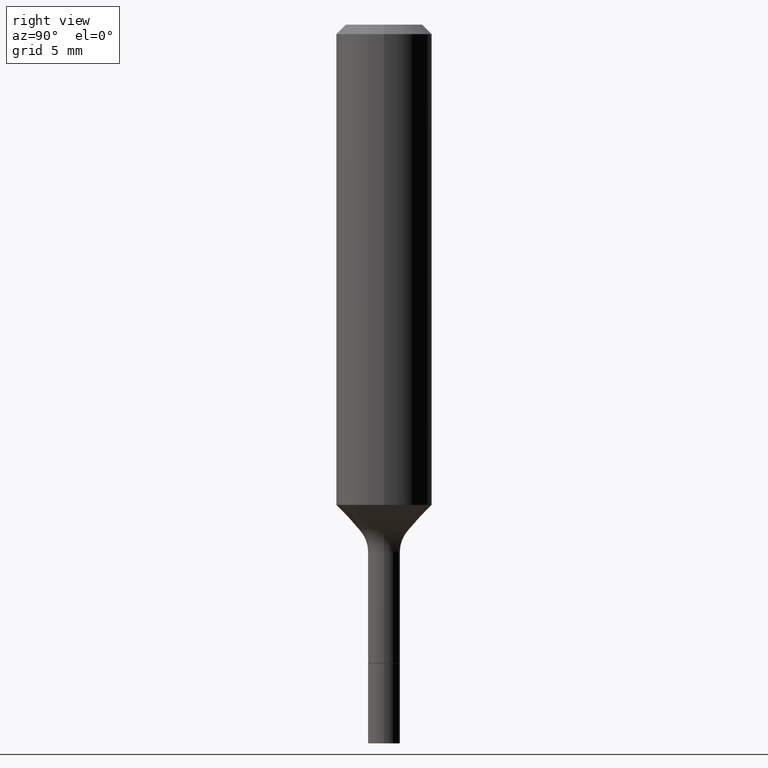
[diagram: clean part render]
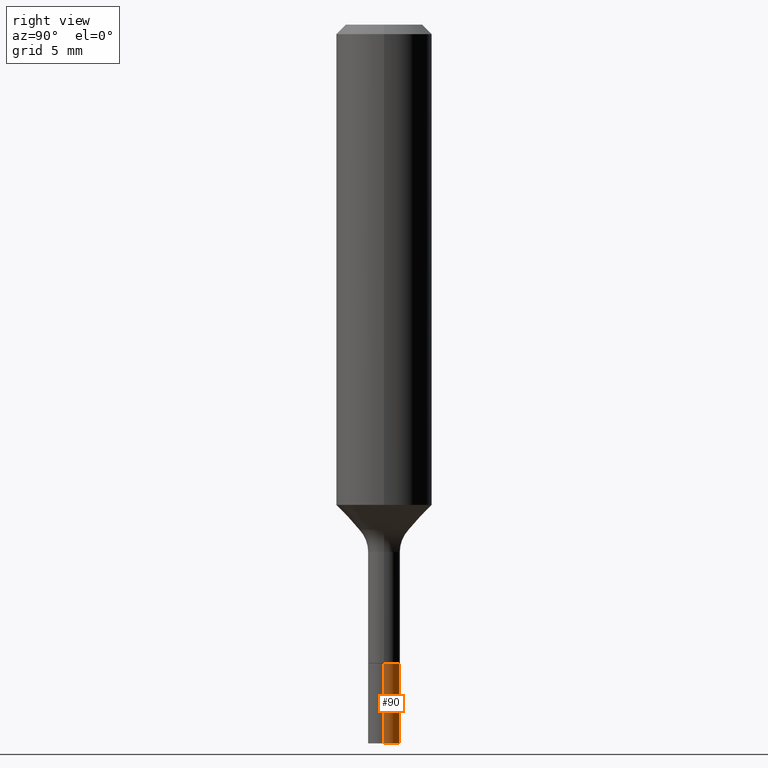
[diagram: same view with one face highlighted and labeled with its STEP entity id]
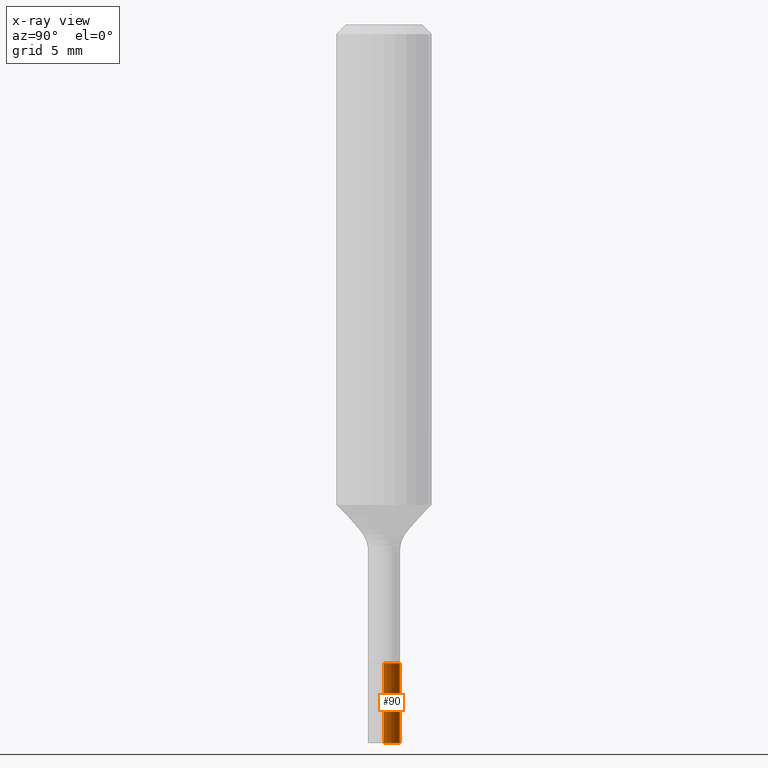
[diagram: x-ray of the same camera — body ghosted, the highlighted face saturated]
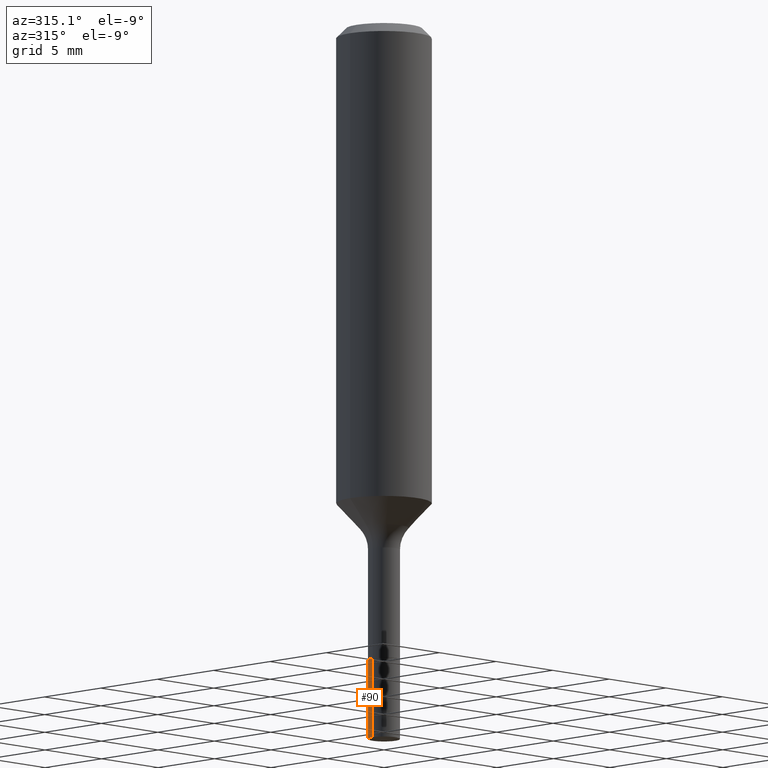
[diagram: same view with one face highlighted and labeled with its STEP entity id]
A machine part, right view. The second image highlights one B-rep face of the part: STEP entity #90.
The next image is the same camera in x-ray: the body ghosted, the highlighted face saturated — about 0% of this face is hidden behind the body in this view.
A second angle (auxiliary view) of the same face is appended — the face is thin or edge-on in the first view.
In plain terms, the highlighted cylindrical surface (edge-blend (fillet) strip) has radius 0.9995 mm, axis along (-0, 0, 1).
Its self-contained STEP definition (entity closure, byte-faithful):
#2 = CYLINDRICAL_SURFACE ( 'NONE', #320, 0.03935000000000005160 ) ;
#7 = ORIENTED_EDGE ( 'NONE', *, *, #205, .F. ) ;
#47 = EDGE_CURVE ( 'NONE', #410, #243, #139, .T. ) ;
#56 = DIRECTION ( 'NONE',  ( -2.445468806185136877E-29, 3.491481338843145188E-15, 1.000000000000000000 ) ) ;
#90 = ADVANCED_FACE ( 'NONE', ( #245 ), #2, .T. ) ;
#93 = VECTOR ( 'NONE', #56, 39.37007874015748143 ) ;
#97 = LINE ( 'NONE', #466, #152 ) ;
#107 = AXIS2_PLACEMENT_3D ( 'NONE', #516, #363, #367 ) ;
#113 = DIRECTION ( 'NONE',  ( 1.000000000000000000, -6.982962677686276177E-15, 0.000000000000000000 ) ) ;
#139 = LINE ( 'NONE', #261, #93 ) ;
#152 = VECTOR ( 'NONE', #383, 39.37007874015748143 ) ;
#157 = DIRECTION ( 'NONE',  ( -2.445468806185136597E-29, 3.491481338843145583E-15, 1.000000000000000000 ) ) ;
#162 = CARTESIAN_POINT ( 'NONE',  ( 0.03935000000000010711, -6.460637069395356787E-15, -1.771700000000000053 ) ) ;
#194 = CARTESIAN_POINT ( 'NONE',  ( 3.850879729099734571E-29, -5.498035664276301854E-15, -1.574699999999999989 ) ) ;
#205 = EDGE_CURVE ( 'NONE', #243, #266, #385, .T. ) ;
#211 = CARTESIAN_POINT ( 'NONE',  ( -0.03935000000000000303, -5.562348009630752072E-15, -1.574699999999999989 ) ) ;
#219 = AXIS2_PLACEMENT_3D ( 'NONE', #499, #504, #113 ) ;
#243 = VERTEX_POINT ( 'NONE', #448 ) ;
#245 = FACE_OUTER_BOUND ( 'NONE', #489, .T. ) ;
#258 = CIRCLE ( 'NONE', #219, 0.03935000000000010711 ) ;
#261 = CARTESIAN_POINT ( 'NONE',  ( 0.03935000000000005160, -5.772815245643255982E-15, -1.574699999999999989 ) ) ;
#266 = VERTEX_POINT ( 'NONE', #211 ) ;
#320 = AXIS2_PLACEMENT_3D ( 'NONE', #194, #157, #321 ) ;
#321 = DIRECTION ( 'NONE',  ( 1.000000000000000000, -6.982962677686260400E-15, 0.000000000000000000 ) ) ;
#362 = ORIENTED_EDGE ( 'NONE', *, *, #497, .T. ) ;
#363 = DIRECTION ( 'NONE',  ( -2.445468806185136597E-29, 3.491481338843145583E-15, 1.000000000000000000 ) ) ;
#367 = DIRECTION ( 'NONE',  ( 1.000000000000000000, -6.982962677686269077E-15, 0.000000000000000000 ) ) ;
#379 = CARTESIAN_POINT ( 'NONE',  ( -0.03935000000000010711, -5.562348009630751283E-15, -1.771700000000000053 ) ) ;
#383 = DIRECTION ( 'NONE',  ( -2.445468806185136877E-29, 3.491481338843145188E-15, 1.000000000000000000 ) ) ;
#385 = CIRCLE ( 'NONE', #107, 0.03935000000000000303 ) ;
#389 = EDGE_CURVE ( 'NONE', #410, #496, #258, .T. ) ;
#410 = VERTEX_POINT ( 'NONE', #162 ) ;
#416 = ORIENTED_EDGE ( 'NONE', *, *, #47, .F. ) ;
#448 = CARTESIAN_POINT ( 'NONE',  ( 0.03935000000000000303, -5.772815245643255982E-15, -1.574699999999999989 ) ) ;
#466 = CARTESIAN_POINT ( 'NONE',  ( -0.03935000000000005160, -5.218437097754701670E-15, -1.574699999999999989 ) ) ;
#489 = EDGE_LOOP ( 'NONE', ( #502, #362, #7, #416 ) ) ;
#496 = VERTEX_POINT ( 'NONE', #379 ) ;
#497 = EDGE_CURVE ( 'NONE', #496, #266, #97, .T. ) ;
#499 = CARTESIAN_POINT ( 'NONE',  ( 4.332637083918206427E-29, -6.185857488028401081E-15, -1.771700000000000053 ) ) ;
#502 = ORIENTED_EDGE ( 'NONE', *, *, #389, .T. ) ;
#504 = DIRECTION ( 'NONE',  ( -2.445468806185136597E-29, 3.491481338843145583E-15, 1.000000000000000000 ) ) ;
#516 = CARTESIAN_POINT ( 'NONE',  ( 3.850879729099734571E-29, -5.498035664276301854E-15, -1.574699999999999989 ) ) ;